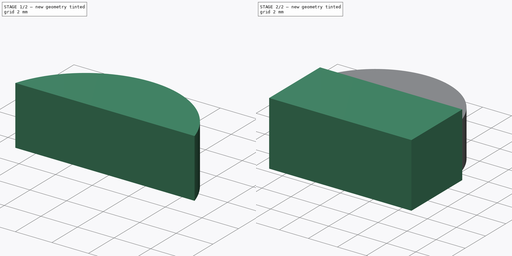
[diagram: build sequence overview — one tinted view per stage of 2, left to right]
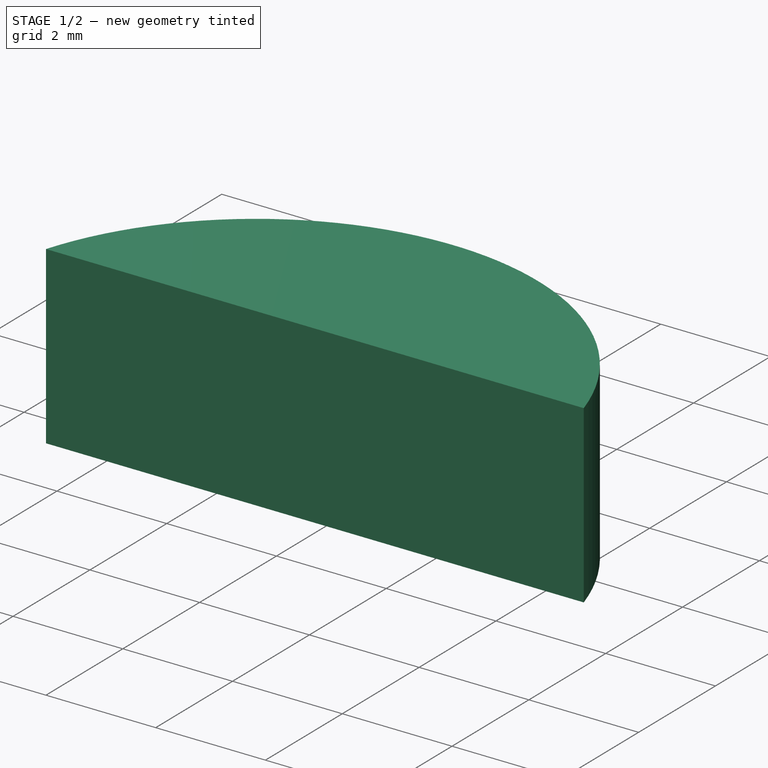
[diagram: stage 1 of 2 — iso view after this stage's code; geometry added in this stage tinted green]
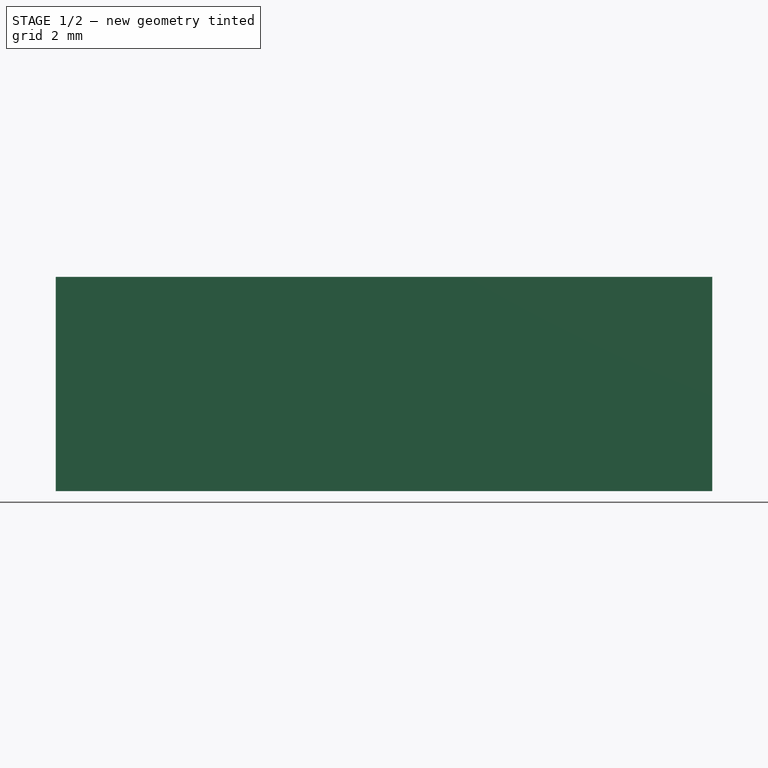
[diagram: stage 1 of 2 — front view after this stage's code; geometry added in this stage tinted green]
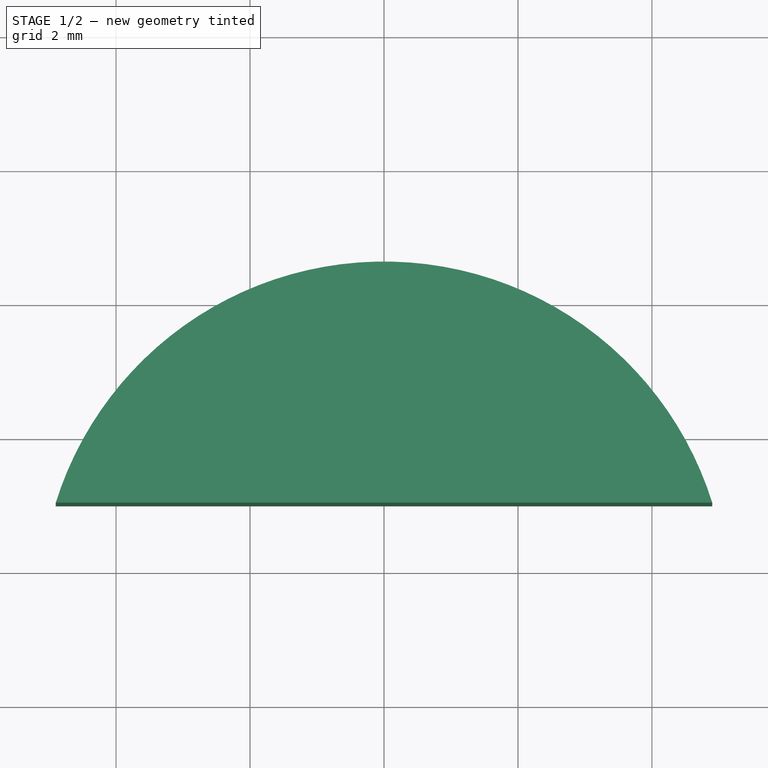
[diagram: stage 1 of 2 — top view after this stage's code; geometry added in this stage tinted green]
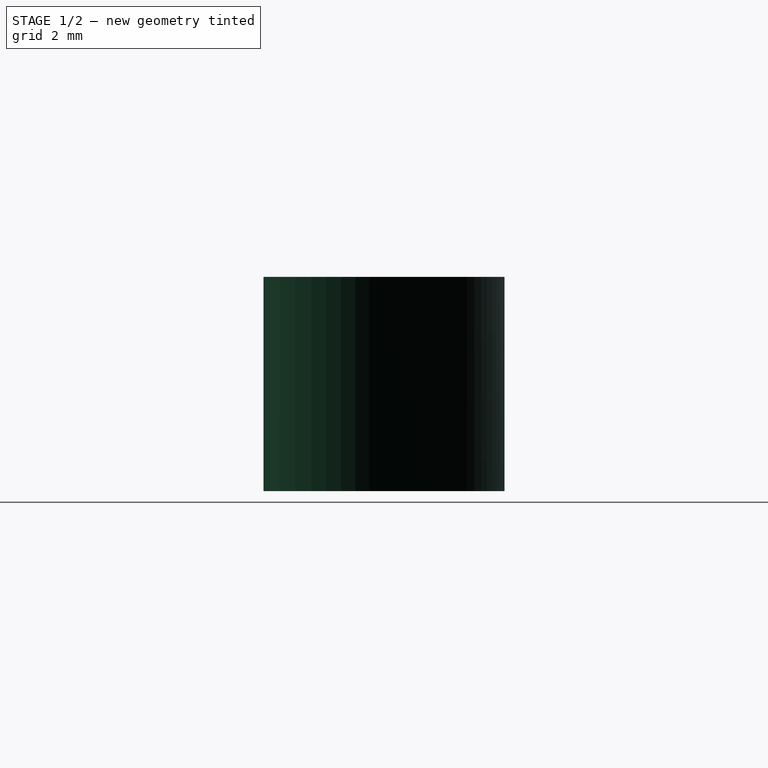
[diagram: stage 1 of 2 — right view after this stage's code; geometry added in this stage tinted green]
FCSTD DOCUMENT  (FreeCAD 2023.114R26244 +5346 (Git))
Label: EC10E1220501
License: Creative Commons Attribution-NonCommercial-ShareAlike
LicenseURL: http://creativecommons.org/licenses/by-nc-sa/4.0/
objects: PartDesign::Pad×2, Sketcher::SketchObject×1, Spreadsheet::Sheet×1, PartDesign::Body×1
note: 9 computed .brp shape members not serialized (recipe doc carries the construction recipe); baked Part::Feature solids carry a one-line shape summary decoded from their .brp

FEATURE [Sketcher::SketchObject] Sketch
  ArcFitTolerance = 1e-06
  AttachmentSupport = -> [XY_Plane]
  ExternalBSplineMaxDegree = 5
  ExternalBSplineTolerance = 0.0001
  FixShape = 1
  FullyConstrained = true
  InternalTolerance = 1e-06
  InvalidShape = false
  MakeInternals = false
  MapMode = 5
  Support = -> [XY_Plane]
  TreeRank = 14
  ValidateShape = false
  expr: Constraints[49] = <<p>>.Height
  sketch-geometry (44):
    g0: LineSegment StartX=-4.9 StartY=9 StartZ=0 EndX=4.9 EndY=9 EndZ=0
    g1: LineSegment StartX=4.9 StartY=9 StartZ=0 EndX=4.9 EndY=4 EndZ=0
    g2: LineSegment StartX=4.9 StartY=4 StartZ=0 EndX=-4.9 EndY=4 EndZ=0
    g3: LineSegment StartX=-4.9 StartY=4 StartZ=0 EndX=-4.9 EndY=9 EndZ=0
    g4: ArcOfCircle CenterX=-4e-16 CenterY=7.46528 CenterZ=0 NormalX=0 NormalY=0 NormalZ=1 AngleXU=0 Radius=5.13472 StartAngle=0.30353 EndAngle=2.83806
    g5: LineSegment [constr] StartX=-4.9 StartY=12.6 StartZ=0 EndX=4.9 EndY=12.6 EndZ=0
    g6: GeomPoint [constr] X=0 Y=9 Z=0
    g7: LineSegment StartX=3.25 StartY=4 StartZ=0 EndX=3.25 EndY=0 EndZ=0
    g8: LineSegment StartX=3.25 StartY=0 StartZ=0 EndX=1.75 EndY=0 EndZ=0
    g9: LineSegment StartX=1.75 StartY=0 StartZ=0 EndX=1.75 EndY=4 EndZ=0
    g10: LineSegment StartX=-1.75 StartY=0 StartZ=0 EndX=-1.75 EndY=4 EndZ=0
    g11: LineSegment StartX=-3.25 StartY=0 StartZ=0 EndX=-1.75 EndY=0 EndZ=0
    g12: LineSegment StartX=-3.25 StartY=4 StartZ=0 EndX=-3.25 EndY=0 EndZ=0
    g13: LineSegment StartX=-0.75 StartY=4 StartZ=0 EndX=-0.75 EndY=0 EndZ=0
    g14: LineSegment StartX=-0.75 StartY=0 StartZ=0 EndX=0.75 EndY=0 EndZ=0
    g15: LineSegment StartX=0.75 StartY=0 StartZ=0 EndX=0.75 EndY=4 EndZ=0
    g16: GeomPoint [constr] X=-2.5 Y=4 Z=0
    g17: GeomPoint [constr] X=2.5 Y=4 Z=0
    g18: LineSegment StartX=-3 StartY=0 StartZ=0 EndX=-3 EndY=-3.5 EndZ=0
    g19: LineSegment StartX=-3 StartY=-3.5 StartZ=0 EndX=-2 EndY=-3.5 EndZ=0
    g20: LineSegment StartX=-2 StartY=-3.5 StartZ=0 EndX=-2 EndY=0 EndZ=0
    g21: GeomPoint [constr] X=-2.5 Y=0 Z=0
    g22: LineSegment StartX=3 StartY=0 StartZ=0 EndX=3 EndY=-3.5 EndZ=0
    g23: LineSegment StartX=3 StartY=-3.5 StartZ=0 EndX=2 EndY=-3.5 EndZ=0
    g24: LineSegment StartX=2 StartY=-3.5 StartZ=0 EndX=2 EndY=0 EndZ=0
    g25: GeomPoint [constr] X=2.5 Y=0 Z=0
    g26: LineSegment StartX=-4.9 StartY=4 StartZ=0 EndX=-4.9 EndY=0 EndZ=0
    g27: LineSegment StartX=-4.65 StartY=4 StartZ=0 EndX=-4.65 EndY=0 EndZ=0
    g28: LineSegment StartX=-4.9 StartY=0 StartZ=0 EndX=-5.71604 EndY=-1.75 EndZ=0
    g29: LineSegment StartX=-5.71604 StartY=-1.75 StartZ=0 EndX=-5.12435 EndY=-3.5 EndZ=0
    g30: LineSegment StartX=-5.12435 StartY=-3.5 StartZ=0 EndX=-4.9 EndY=-3.42414 EndZ=0
    g31: LineSegment StartX=-4.9 StartY=-3.42414 StartZ=0 EndX=-5.46604 EndY=-1.75 EndZ=0
    g32: LineSegment StartX=-5.46604 StartY=-1.75 StartZ=0 EndX=-4.65 EndY=0 EndZ=0
    g33: GeomPoint [constr] X=-3 Y=-1.75 Z=0
    g34: LineSegment StartX=-0.5 StartY=0 StartZ=0 EndX=-0.5 EndY=-3.5 EndZ=0
    g35: LineSegment StartX=-0.5 StartY=-3.5 StartZ=0 EndX=0.5 EndY=-3.5 EndZ=0
    g36: LineSegment StartX=0.5 StartY=-3.5 StartZ=0 EndX=0.5 EndY=0 EndZ=0
    g37: LineSegment StartX=4.9 StartY=4 StartZ=0 EndX=4.9 EndY=0 EndZ=0
    g38: LineSegment StartX=4.9 StartY=0 StartZ=0 EndX=5.71604 EndY=-1.75 EndZ=0
    g39: LineSegment StartX=5.71604 StartY=-1.75 StartZ=0 EndX=5.12435 EndY=-3.5 EndZ=0
    g40: LineSegment StartX=5.12435 StartY=-3.5 StartZ=0 EndX=4.9 EndY=-3.42414 EndZ=0
    g41: LineSegment StartX=4.9 StartY=-3.42414 StartZ=0 EndX=5.46604 EndY=-1.75 EndZ=0
    g42: LineSegment StartX=5.46604 StartY=-1.75 StartZ=0 EndX=4.65 EndY=0 EndZ=0
    g43: LineSegment StartX=4.65 StartY=0 StartZ=0 EndX=4.65 EndY=4 EndZ=0
  constraints (122):
    c: Coincident(g0,g1)
    c: Coincident(g1,g2)
    c: Coincident(g2,g3)
    c: Coincident(g3,g0)
    c: Horizontal(g2)
    c: Vertical(g1)
    c: Vertical(g3)
    c: Distance(g0) = 9.8
    c: Horizontal(g0)
    c: Coincident(g4,g0)
    c: Coincident(g4,g0)
    c: Horizontal(g5)
    c: Tangent(g5,g4)
    c: Equal(g5,g0)
    c: Vertical(g5,g0)
    c: Distance(g5,g0) = 3.6
    c: Distance(g1) = 5
    c: Symmetric(g0,g0,g6)
    c: PointOnObject(g6,g-2)
    c: Coincident(g7,g8)
    c: Coincident(g8,g9)
    c: Horizontal(g8)
    c: Vertical(g7)
    c: Vertical(g9)
    c: PointOnObject(g9,g2)
    c: PointOnObject(g8,g-1)
    c: Distance(g8) = 1.5
    c: Coincident(g12,g11)
    c: Coincident(g11,g10)
    c: Horizontal(g11)
    c: Vertical(g12)
    c: Vertical(g10)
    c: Equal(g8,g11)
    c: PointOnObject(g10,g2)
    c: PointOnObject(g12,g2)
    c: PointOnObject(g7,g2)
    c: PointOnObject(g13,g2)
    c: PointOnObject(g13,g-1)
    c: Vertical(g13)
    c: Coincident(g14,g13)
    c: Coincident(g15,g14)
    c: PointOnObject(g15,g2)
    c: Vertical(g15)
    c: Symmetric(g14,g13,g-1)
    c: Equal(g14,g8)
    c: Symmetric(g8,g10,g-1)
    c: Symmetric(g9,g7,g17)
    c: Symmetric(g12,g10,g16)
    c: Distance(g16,g17) = 5
    c: DistanceY(g0) = 9
    c: PointOnObject(g18,g11)
    c: Vertical(g18)
    c: Coincident(g19,g18)
    c: Coincident(g20,g19)
    c: Vertical(g20)
    c: Horizontal(g19)
    c: Symmetric(g11,g10,g21)
    c: Symmetric(g20,g18,g21)
    c: Distance(g19) = 1
    c: Distance(g18) = 3.5
    c: Vertical(g22)
    c: Coincident(g23,g22)
    c: Coincident(g24,g23)
    c: Vertical(g24)
    c: Horizontal(g23)
    c: Equal(g23,g19)
    c: Equal(g24,g18)
    c: Symmetric(g7,g8,g25)
    c: Symmetric(g22,g24,g25)
    c: PointOnObject(g22,g8)
    c: Coincident(g26,g2)
    c: PointOnObject(g26,g-1)
    c: Vertical(g26)
    c: PointOnObject(g27,g2)
    c: PointOnObject(g27,g-1)
    c: Vertical(g27)
    c: Distance(g27,g2) = 0.25
    c: Coincident(g28,g26)
    c: Coincident(g29,g28)
    c: Coincident(g30,g29)
    c: Coincident(g31,g30)
    c: Coincident(g32,g31)
    c: Coincident(g32,g27)
    c: Horizontal(g31,g28)
    c: Parallel(g32,g28)
    c: Parallel(g31,g29)
    c: Perpendicular(g30,g31)
    c: Horizontal(g18,g29)
    c: Symmetric(g18,g18,g33)
    c: Horizontal(g33,g31)
    c: Angle(g26,g28) = 2.70526
    c: Vertical(g26,g30)
    c: PointOnObject(g34,g14)
    c: Vertical(g34)
    c: Coincident(g35,g34)
    c: Horizontal(g35)
    c: Coincident(g36,g35)
    c: Vertical(g36)
    c: Symmetric(g36,g34,g-1)
    c: Equal(g35,g19)
    c: Equal(g34,g20)
    c: Coincident(g37,g1)
    c: PointOnObject(g37,g-1)
    c: Vertical(g37)
    c: Coincident(g38,g37)
    c: Coincident(g39,g38)
    c: Coincident(g40,g39)
    c: Coincident(g41,g40)
    c: PointOnObject(g42,g-1)
    c: Coincident(g43,g42)
    c: PointOnObject(g43,g2)
    c: Vertical(g43)
    c: Parallel(g42,g38)
    c: Parallel(g39,g41)
    c: Perpendicular(g40,g39)
    c: Equal(g38,g28)
    c: Coincident(g42,g41)
    c: Equal(g40,g30)
    c: Equal(g42,g32)
    c: Vertical(g40,g37)
    c: Equal(g41,g31)
    c: Horizontal(g18,g39)
FEATURE [Spreadsheet::Sheet] Spreadsheet  label="p"
  PythonMode = false
  ShowCells = 0
  TreeRank = 12
  cells = A1=Name; B1=Value; A2=Height; B2(Height)==9mm
FEATURE [PartDesign::Pad] Pad
  AddSubType = 0
  AlongSketchNormal = false
  AutoTaperInnerAngle = true
  CheckUpToFaceLimits = true
  ClaimChildren = false
  Direction = (0,0,1)
  Fit = 0
  FitJoin = 0
  FixShape = 1
  InnerFit = 0
  InnerFitJoin = 0
  InvalidShape = false
  Length = 3.2
  Length2 = 100
  Linearize = true
  Midplane = true
  NewSolid = false
  Profile = -> Sketch [Edge9,Edge8]
  Suppress = false
  TaperInnerAngle = 0
  TaperInnerAngleRev = 0
  TreeRank = 15
  Type = 0
  ValidateShape = false
  _ProfileBasedVersion = 1
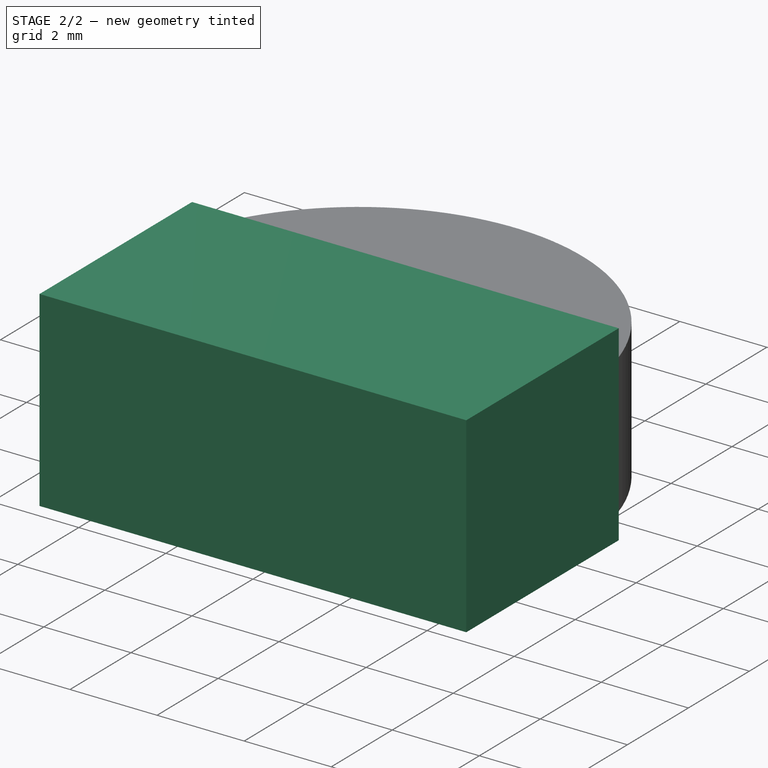
[diagram: stage 2 of 2 — iso view after this stage's code; geometry added in this stage tinted green]
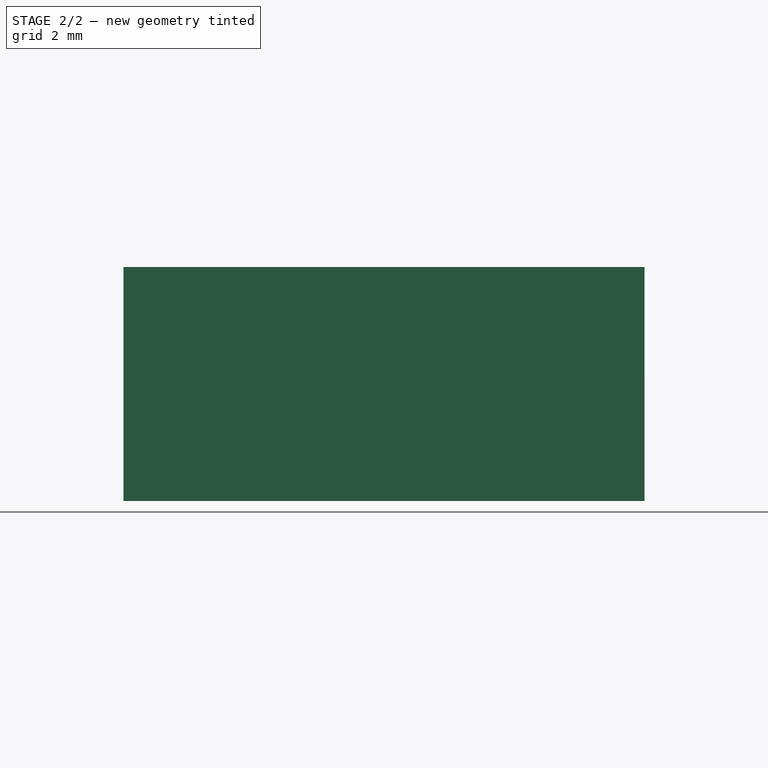
[diagram: stage 2 of 2 — front view after this stage's code; geometry added in this stage tinted green]
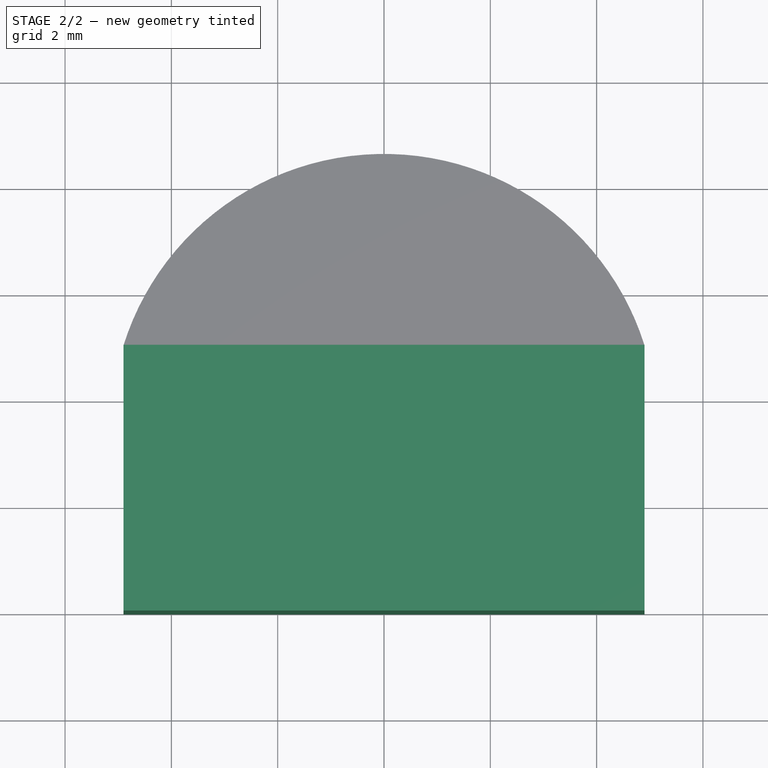
[diagram: stage 2 of 2 — top view after this stage's code; geometry added in this stage tinted green]
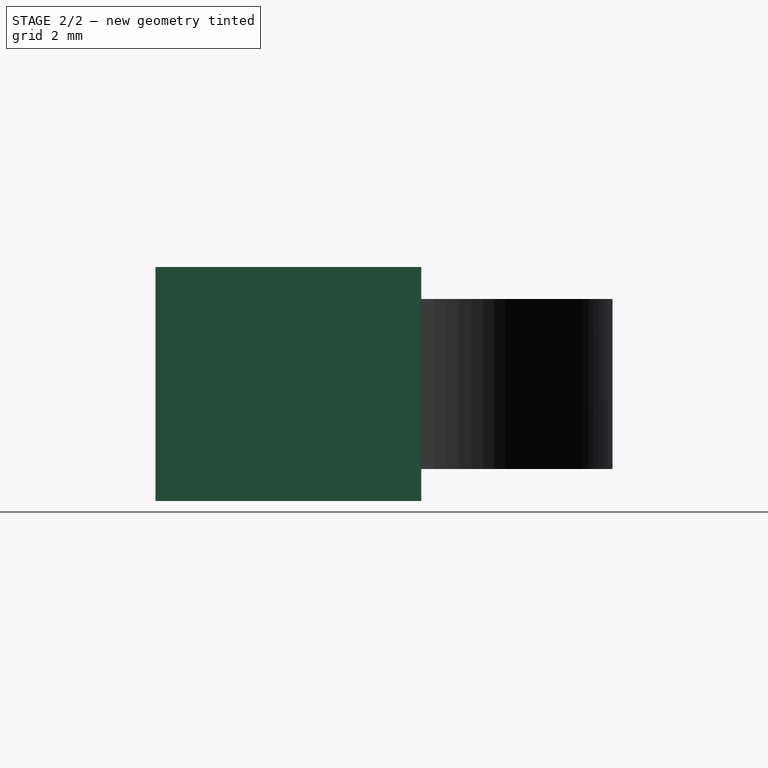
[diagram: stage 2 of 2 — right view after this stage's code; geometry added in this stage tinted green]
FEATURE [PartDesign::Pad] Pad001
  AddSubType = 0
  AlongSketchNormal = false
  AutoTaperInnerAngle = true
  BaseFeature = -> Pad
  CheckUpToFaceLimits = true
  ClaimChildren = false
  Direction = (0,0,1)
  Fit = 0
  FitJoin = 0
  FixShape = 1
  InnerFit = 0
  InnerFitJoin = 0
  InvalidShape = false
  Length = 4.4
  Length2 = 100
  Linearize = true
  Midplane = true
  NewSolid = false
  Profile = -> Sketch [Edge9,Edge12,Edge11,Edge10]
  Suppress = false
  TaperInnerAngle = 0
  TaperInnerAngleRev = 0
  TreeRank = 16
  Type = 0
  ValidateShape = false
  _ProfileBasedVersion = 1
FEATURE [PartDesign::Body] Body  label="EC10E1220501"
  AutoGroupSolids = false
  ClaimAllChildren = false
  ExportMode = 0
  FixShape = 1
  Group = -> [Sketch,Pad,Pad001]
  InvalidShape = false
  Origin = -> Origin
  Tip = -> Pad001
  TreeRank = 13
  ValidateShape = false
  _ExportChildren = -> [Pad,Pad001]
  _GroupVersion = 1
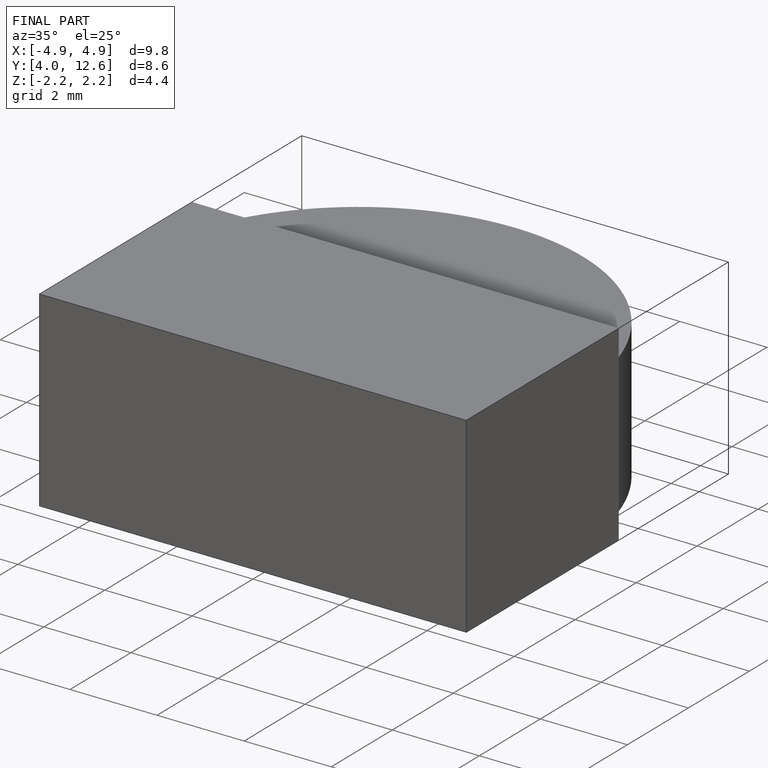
[diagram: finished part — iso view with bounding-box wireframe]
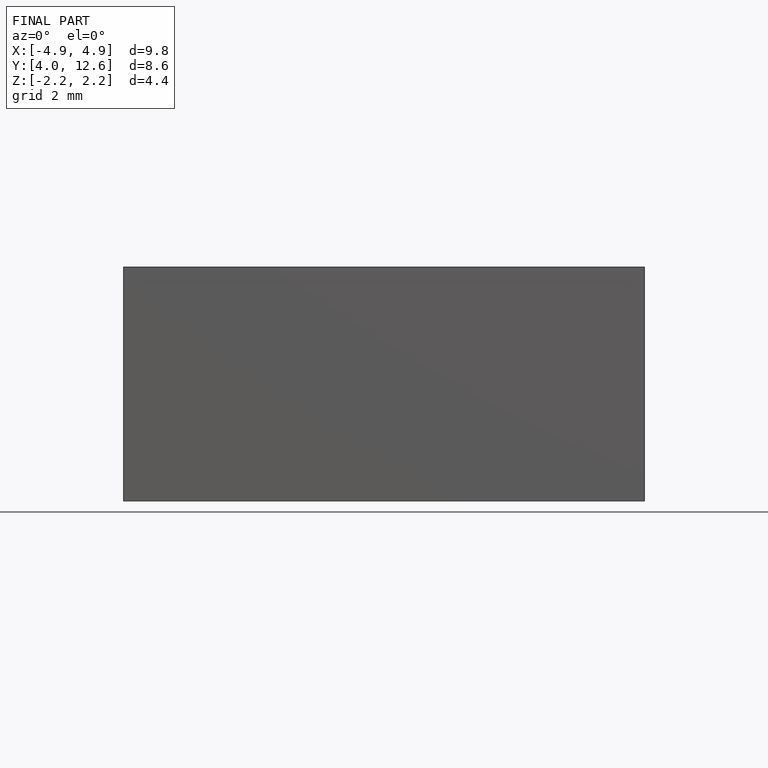
[diagram: finished part — front view with bounding-box wireframe]
